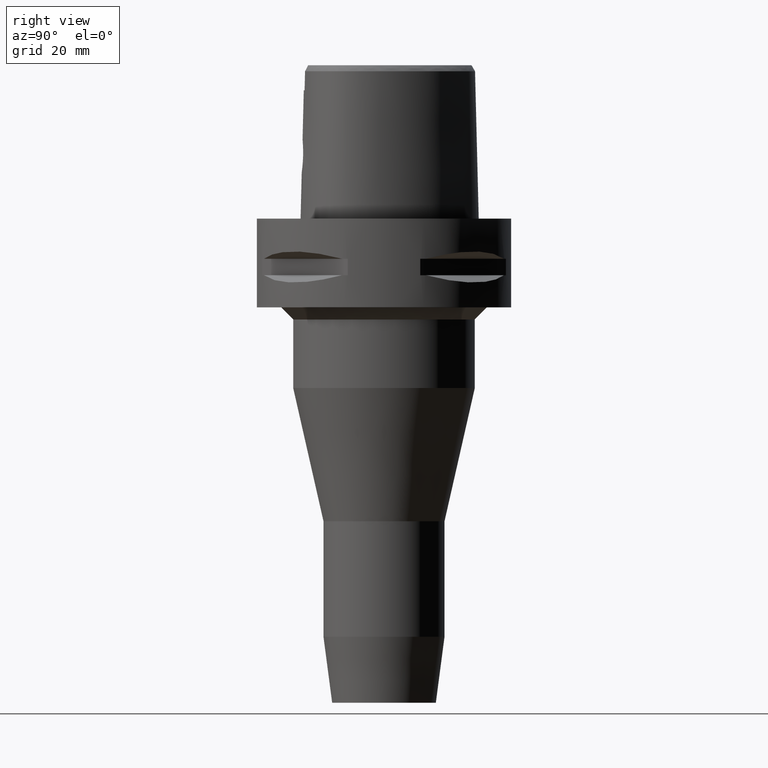
[diagram: clean part render]
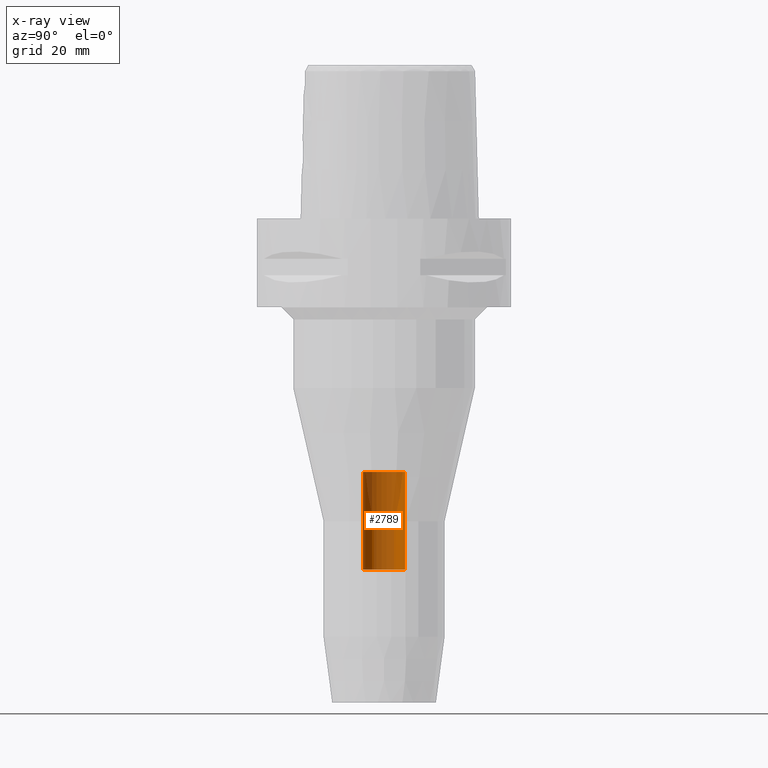
[diagram: x-ray — body ghosted, one internal face saturated and labeled with its STEP entity id]
A machine part, right view, then the same camera in x-ray: the body is ghosted and one INTERNAL B-rep face — a face not visible from any outside direction — is saturated and labeled: STEP entity #2789.
In plain terms, the highlighted cylindrical surface (edge-blend (fillet) strip) has radius 5.25 mm, axis along (0, 0, -1).
Its self-contained STEP definition (entity closure, byte-faithful):
#754=CARTESIAN_POINT('',(0.E0,1.298125607096E-14,-8.7E1));
#755=DIRECTION('',(0.E0,0.E0,-1.E0));
#756=DIRECTION('',(0.E0,-1.E0,0.E0));
#757=AXIS2_PLACEMENT_3D('',#754,#755,#756);
#786=DIRECTION('',(0.E0,0.E0,1.E0));
#787=VECTOR('',#786,2.42E1);
#788=CARTESIAN_POINT('',(0.E0,-5.25E0,-8.7E1));
#789=LINE('',#788,#787);
#793=DIRECTION('',(0.E0,0.E0,1.E0));
#794=VECTOR('',#793,2.42E1);
#795=CARTESIAN_POINT('',(0.E0,5.25E0,-8.7E1));
#796=LINE('',#795,#794);
#808=CARTESIAN_POINT('',(0.E0,1.298125607096E-14,-6.28E1));
#809=DIRECTION('',(0.E0,0.E0,1.E0));
#810=DIRECTION('',(0.E0,1.E0,0.E0));
#811=AXIS2_PLACEMENT_3D('',#808,#809,#810);
#1700=CARTESIAN_POINT('',(0.E0,-5.25E0,-8.7E1));
#1701=CARTESIAN_POINT('',(0.E0,5.25E0,-8.7E1));
#1702=VERTEX_POINT('',#1700);
#1703=VERTEX_POINT('',#1701);
#1704=CARTESIAN_POINT('',(0.E0,5.25E0,-6.28E1));
#1705=VERTEX_POINT('',#1704);
#1706=CARTESIAN_POINT('',(0.E0,-5.25E0,-6.28E1));
#1707=VERTEX_POINT('',#1706);
#2775=CARTESIAN_POINT('',(0.E0,1.298125607096E-14,6.E0));
#2776=DIRECTION('',(0.E0,0.E0,-1.E0));
#2777=DIRECTION('',(0.E0,-1.E0,0.E0));
#2778=AXIS2_PLACEMENT_3D('',#2775,#2776,#2777);
#2779=CYLINDRICAL_SURFACE('',#2778,5.25E0);
#2781=ORIENTED_EDGE('',*,*,#2780,.F.);
#2782=ORIENTED_EDGE('',*,*,#2764,.F.);
#2784=ORIENTED_EDGE('',*,*,#2783,.T.);
#2786=ORIENTED_EDGE('',*,*,#2785,.F.);
#2787=EDGE_LOOP('',(#2781,#2782,#2784,#2786));
#2788=FACE_OUTER_BOUND('',#2787,.F.);
#758=CIRCLE('',#757,5.25E0);
#812=CIRCLE('',#811,5.25E0);
#2764=EDGE_CURVE('',#1702,#1703,#758,.T.);
#2780=EDGE_CURVE('',#1703,#1705,#796,.T.);
#2783=EDGE_CURVE('',#1702,#1707,#789,.T.);
#2785=EDGE_CURVE('',#1705,#1707,#812,.T.);
#2789=ADVANCED_FACE('',(#2788),#2779,.F.);